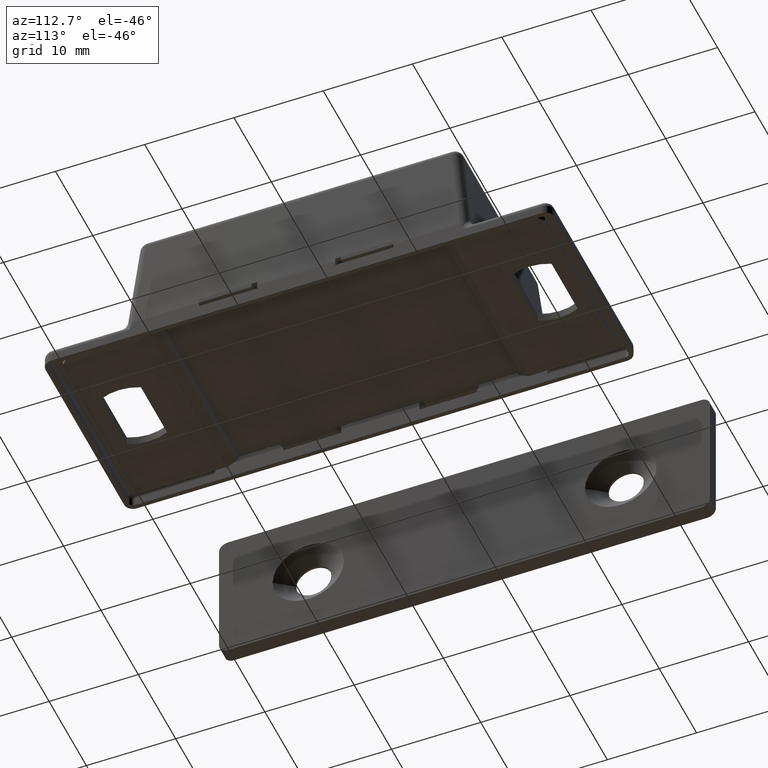
[diagram: clean part render]
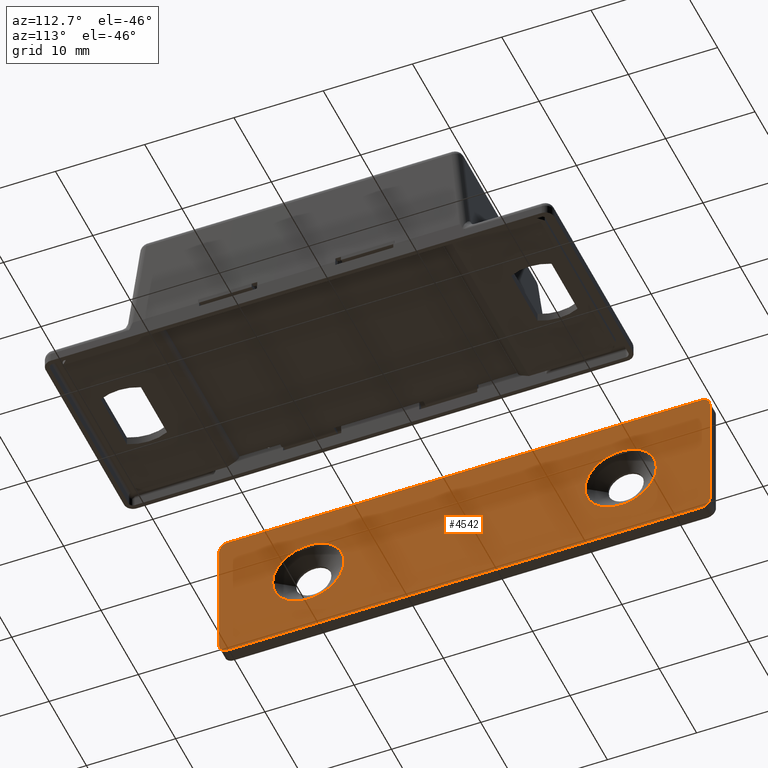
[diagram: same view with one face highlighted and labeled with its STEP entity id]
A machine part, auxiliary view. The second image highlights one B-rep face of the part: STEP entity #4542.
In plain terms, the highlighted planar face has unit normal (1, -0, 0).
Its self-contained STEP definition (entity closure, byte-faithful):
#72=FACE_BOUND('',#866,.T.);
#73=FACE_BOUND('',#867,.T.);
#218=CIRCLE('',#4925,4.);
#221=CIRCLE('',#4930,4.);
#224=CIRCLE('',#4935,1.);
#229=CIRCLE('',#4943,1.);
#230=CIRCLE('',#4946,1.);
#231=CIRCLE('',#4948,1.);
#601=FACE_OUTER_BOUND('',#865,.T.);
#865=EDGE_LOOP('',(#4142,#4143,#4144,#4145,#4146,#4147,#4148,#4149));
#866=EDGE_LOOP('',(#4150));
#867=EDGE_LOOP('',(#4151));
#1316=LINE('',#8298,#1776);
#1322=LINE('',#8319,#1782);
#1326=LINE('',#8330,#1786);
#1327=LINE('',#8332,#1787);
#1776=VECTOR('',#6177,14.);
#1782=VECTOR('',#6197,14.);
#1786=VECTOR('',#6211,53.);
#1787=VECTOR('',#6214,53.);
#2180=VERTEX_POINT('',#8269);
#2183=VERTEX_POINT('',#8277);
#2186=VERTEX_POINT('',#8285);
#2187=VERTEX_POINT('',#8286);
#2191=VERTEX_POINT('',#8296);
#2197=VERTEX_POINT('',#8312);
#2198=VERTEX_POINT('',#8313);
#2199=VERTEX_POINT('',#8318);
#2200=VERTEX_POINT('',#8322);
#2201=VERTEX_POINT('',#8326);
#2822=EDGE_CURVE('',#2180,#2180,#218,.T.);
#2825=EDGE_CURVE('',#2183,#2183,#221,.T.);
#2828=EDGE_CURVE('',#2186,#2187,#224,.T.);
#2834=EDGE_CURVE('',#2186,#2191,#1316,.T.);
#2841=EDGE_CURVE('',#2197,#2198,#229,.T.);
#2844=EDGE_CURVE('',#2199,#2198,#1322,.T.);
#2846=EDGE_CURVE('',#2199,#2200,#230,.T.);
#2848=EDGE_CURVE('',#2201,#2191,#231,.T.);
#2850=EDGE_CURVE('',#2201,#2200,#1326,.T.);
#2851=EDGE_CURVE('',#2197,#2187,#1327,.T.);
#4142=ORIENTED_EDGE('',*,*,#2828,.F.);
#4143=ORIENTED_EDGE('',*,*,#2834,.T.);
#4144=ORIENTED_EDGE('',*,*,#2848,.F.);
#4145=ORIENTED_EDGE('',*,*,#2850,.T.);
#4146=ORIENTED_EDGE('',*,*,#2846,.F.);
#4147=ORIENTED_EDGE('',*,*,#2844,.T.);
#4148=ORIENTED_EDGE('',*,*,#2841,.F.);
#4149=ORIENTED_EDGE('',*,*,#2851,.T.);
#4150=ORIENTED_EDGE('',*,*,#2822,.T.);
#4151=ORIENTED_EDGE('',*,*,#2825,.T.);
#4293=PLANE('',#4951);
#4542=ADVANCED_FACE('',(#601,#72,#73),#4293,.T.);
#4925=AXIS2_PLACEMENT_3D('',#8270,#6147,#6148);
#4930=AXIS2_PLACEMENT_3D('',#8278,#6157,#6158);
#4935=AXIS2_PLACEMENT_3D('',#8287,#6167,#6168);
#4943=AXIS2_PLACEMENT_3D('',#8314,#6191,#6192);
#4946=AXIS2_PLACEMENT_3D('',#8323,#6201,#6202);
#4948=AXIS2_PLACEMENT_3D('',#8327,#6206,#6207);
#4951=AXIS2_PLACEMENT_3D('',#8333,#6215,#6216);
#6147=DIRECTION('center_axis',(0.,0.,-1.));
#6148=DIRECTION('ref_axis',(1.,0.,0.));
#6157=DIRECTION('center_axis',(0.,0.,-1.));
#6158=DIRECTION('ref_axis',(1.,0.,0.));
#6167=DIRECTION('center_axis',(0.,0.,-1.));
#6168=DIRECTION('ref_axis',(0.707106781186546,-0.707106781186549,0.));
#6177=DIRECTION('',(0.,1.,0.));
#6191=DIRECTION('center_axis',(0.,0.,-1.));
#6192=DIRECTION('ref_axis',(-0.707106781186546,-0.707106781186549,0.));
#6197=DIRECTION('',(0.,-1.,0.));
#6201=DIRECTION('center_axis',(0.,0.,-1.));
#6202=DIRECTION('ref_axis',(-0.707106781186546,0.707106781186549,0.));
#6206=DIRECTION('center_axis',(0.,0.,-1.));
#6207=DIRECTION('ref_axis',(0.707106781186546,0.707106781186549,0.));
#6211=DIRECTION('',(-1.,0.,0.));
#6214=DIRECTION('',(1.,0.,0.));
#6215=DIRECTION('center_axis',(0.,0.,1.));
#6216=DIRECTION('ref_axis',(1.,0.,0.));
#8269=CARTESIAN_POINT('',(-13.5,0.,1.6));
#8270=CARTESIAN_POINT('Origin',(-17.5,0.,1.6));
#8277=CARTESIAN_POINT('',(21.5,0.,1.6));
#8278=CARTESIAN_POINT('Origin',(17.5,0.,1.6));
#8285=CARTESIAN_POINT('',(27.5,-7.,1.6));
#8286=CARTESIAN_POINT('',(26.5,-8.,1.6));
#8287=CARTESIAN_POINT('Origin',(26.5,-7.,1.6));
#8296=CARTESIAN_POINT('',(27.5,7.,1.6));
#8298=CARTESIAN_POINT('',(27.5,-8.,1.6));
#8312=CARTESIAN_POINT('',(-26.5,-8.,1.6));
#8313=CARTESIAN_POINT('',(-27.5,-7.,1.6));
#8314=CARTESIAN_POINT('Origin',(-26.5,-7.,1.6));
#8318=CARTESIAN_POINT('',(-27.5,7.,1.6));
#8319=CARTESIAN_POINT('',(-27.5,8.,1.6));
#8322=CARTESIAN_POINT('',(-26.5,8.,1.6));
#8323=CARTESIAN_POINT('Origin',(-26.5,7.,1.6));
#8326=CARTESIAN_POINT('',(26.5,8.,1.6));
#8327=CARTESIAN_POINT('Origin',(26.5,7.,1.6));
#8330=CARTESIAN_POINT('',(27.5,8.,1.6));
#8332=CARTESIAN_POINT('',(-27.5,-8.,1.6));
#8333=CARTESIAN_POINT('Origin',(0.,0.,1.6));